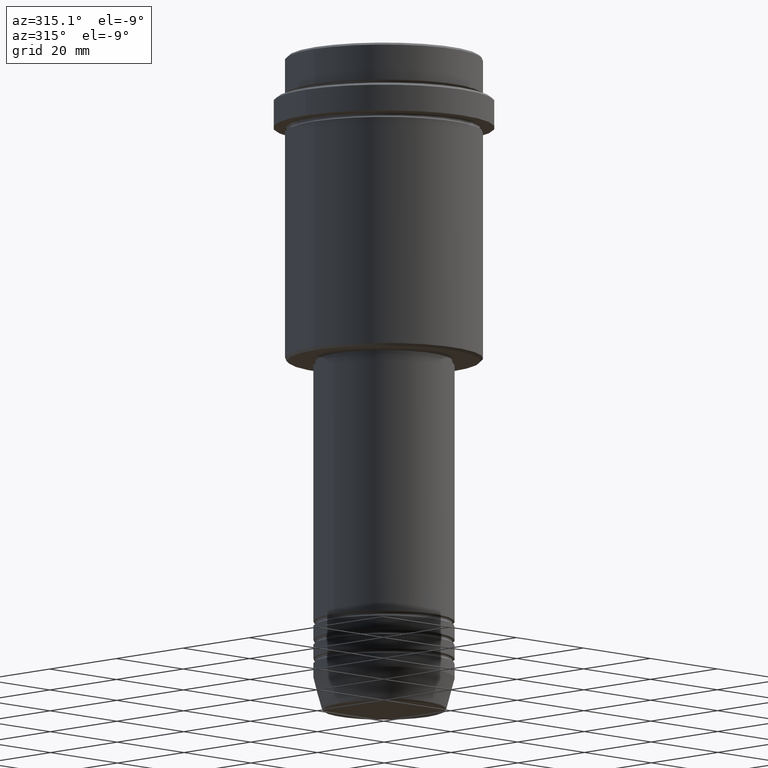
[diagram: clean part render]
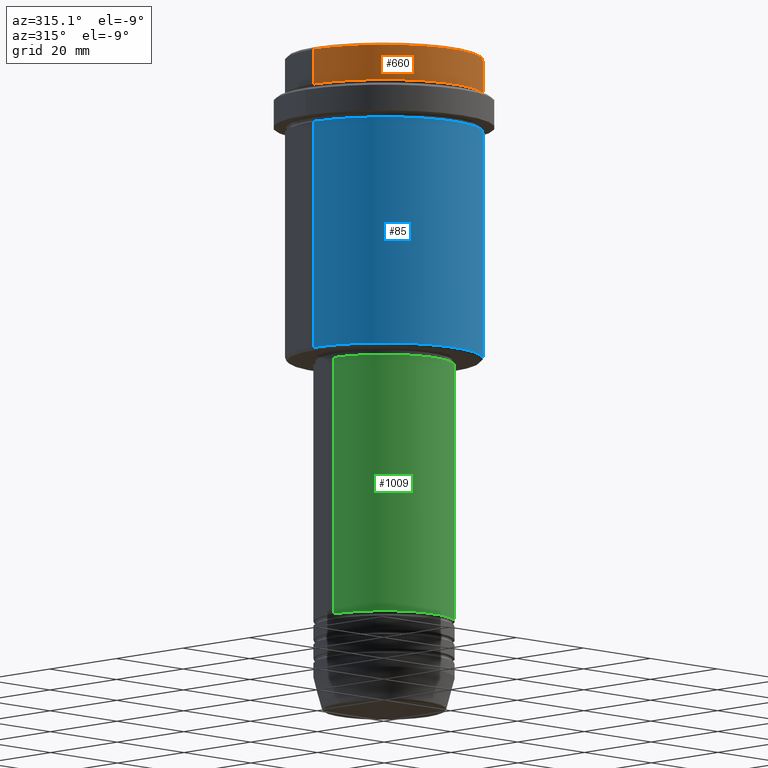
[diagram: same view with three faces highlighted in distinct colors, each labeled with its STEP entity id]
A machine part, auxiliary view with three faces highlighted in distinct colors.
Their STEP definitions:

[orange] entity #660 — the highlighted cylindrical surface (partial cylindrical patch) has radius 21 mm, axis along (-0, -0, 1).
#24 = CARTESIAN_POINT ( 'NONE',  ( 21.00000000000000000, 0.000000000000000000, 0.000000000000000000 ) ) ;
#59 = CARTESIAN_POINT ( 'NONE',  ( 0.000000000000000000, 0.000000000000000000, 0.000000000000000000 ) ) ;
#78 = ORIENTED_EDGE ( 'NONE', *, *, #736, .T. ) ;
#114 = CARTESIAN_POINT ( 'NONE',  ( 21.00000000000000000, 0.000000000000000000, -7.999999999999998224 ) ) ;
#117 = DIRECTION ( 'NONE',  ( -0.000000000000000000, -0.000000000000000000, 1.000000000000000000 ) ) ;
#182 = DIRECTION ( 'NONE',  ( 1.000000000000000000, 0.000000000000000000, 0.000000000000000000 ) ) ;
#199 = AXIS2_PLACEMENT_3D ( 'NONE', #59, #379, #1038 ) ;
#244 = VECTOR ( 'NONE', #117, 1000.000000000000000 ) ;
#252 = VERTEX_POINT ( 'NONE', #589 ) ;
#366 = CIRCLE ( 'NONE', #1177, 21.00000000000000000 ) ;
#367 = VECTOR ( 'NONE', #1124, 1000.000000000000000 ) ;
#379 = DIRECTION ( 'NONE',  ( -0.000000000000000000, -0.000000000000000000, 1.000000000000000000 ) ) ;
#394 = DIRECTION ( 'NONE',  ( 0.000000000000000000, 0.000000000000000000, -1.000000000000000000 ) ) ;
#457 = AXIS2_PLACEMENT_3D ( 'NONE', #1148, #466, #701 ) ;
#466 = DIRECTION ( 'NONE',  ( -0.000000000000000000, -0.000000000000000000, 1.000000000000000000 ) ) ;
#471 = CYLINDRICAL_SURFACE ( 'NONE', #199, 21.00000000000000000 ) ;
#479 = FACE_OUTER_BOUND ( 'NONE', #940, .T. ) ;
#496 = CARTESIAN_POINT ( 'NONE',  ( 0.000000000000000000, 0.000000000000000000, -0.5000000000000247580 ) ) ;
#531 = LINE ( 'NONE', #1098, #244 ) ;
#589 = CARTESIAN_POINT ( 'NONE',  ( 21.00000000000000000, 0.000000000000000000, -0.5000000000000247580 ) ) ;
#612 = VERTEX_POINT ( 'NONE', #114 ) ;
#660 = ADVANCED_FACE ( 'NONE', ( #479 ), #471, .T. ) ;
#701 = DIRECTION ( 'NONE',  ( 1.000000000000000000, 0.000000000000000000, 0.000000000000000000 ) ) ;
#736 = EDGE_CURVE ( 'NONE', #832, #612, #824, .T. ) ;
#742 = ORIENTED_EDGE ( 'NONE', *, *, #862, .T. ) ;
#824 = CIRCLE ( 'NONE', #457, 21.00000000000000000 ) ;
#832 = VERTEX_POINT ( 'NONE', #841 ) ;
#841 = CARTESIAN_POINT ( 'NONE',  ( -21.00000000000000000, 2.571758278209441661E-15, -7.999999999999998224 ) ) ;
#862 = EDGE_CURVE ( 'NONE', #252, #975, #366, .T. ) ;
#876 = ORIENTED_EDGE ( 'NONE', *, *, #956, .F. ) ;
#940 = EDGE_LOOP ( 'NONE', ( #876, #78, #1152, #742 ) ) ;
#956 = EDGE_CURVE ( 'NONE', #832, #975, #531, .T. ) ;
#975 = VERTEX_POINT ( 'NONE', #1317 ) ;
#1038 = DIRECTION ( 'NONE',  ( 1.000000000000000000, 0.000000000000000000, 0.000000000000000000 ) ) ;
#1096 = EDGE_CURVE ( 'NONE', #612, #252, #1226, .T. ) ;
#1098 = CARTESIAN_POINT ( 'NONE',  ( -21.00000000000000000, 2.571758278209441661E-15, 0.000000000000000000 ) ) ;
#1124 = DIRECTION ( 'NONE',  ( -0.000000000000000000, -0.000000000000000000, 1.000000000000000000 ) ) ;
#1148 = CARTESIAN_POINT ( 'NONE',  ( 0.000000000000000000, 0.000000000000000000, -7.999999999999998224 ) ) ;
#1152 = ORIENTED_EDGE ( 'NONE', *, *, #1096, .T. ) ;
#1177 = AXIS2_PLACEMENT_3D ( 'NONE', #496, #394, #182 ) ;
#1226 = LINE ( 'NONE', #24, #367 ) ;
#1317 = CARTESIAN_POINT ( 'NONE',  ( -21.00000000000000000, 2.571758278209441661E-15, -0.5000000000000247580 ) ) ;

[blue] entity #85 — the highlighted cylindrical surface (partial cylindrical patch) has radius 21 mm, axis along (-0, -0, 1).
#71 = DIRECTION ( 'NONE',  ( -0.000000000000000000, -0.000000000000000000, 1.000000000000000000 ) ) ;
#85 = ADVANCED_FACE ( 'NONE', ( #787 ), #1230, .T. ) ;
#153 = DIRECTION ( 'NONE',  ( -0.000000000000000000, -0.000000000000000000, 1.000000000000000000 ) ) ;
#154 = AXIS2_PLACEMENT_3D ( 'NONE', #1070, #382, #407 ) ;
#203 = CARTESIAN_POINT ( 'NONE',  ( -21.00000000000000000, 2.571758278209441661E-15, -16.00000000000000355 ) ) ;
#207 = VERTEX_POINT ( 'NONE', #858 ) ;
#262 = VECTOR ( 'NONE', #1163, 1000.000000000000000 ) ;
#305 = VERTEX_POINT ( 'NONE', #1049 ) ;
#348 = CIRCLE ( 'NONE', #154, 21.00000000000000000 ) ;
#368 = ORIENTED_EDGE ( 'NONE', *, *, #1276, .F. ) ;
#382 = DIRECTION ( 'NONE',  ( -0.000000000000000000, -0.000000000000000000, 1.000000000000000000 ) ) ;
#407 = DIRECTION ( 'NONE',  ( 1.000000000000000000, 0.000000000000000000, 0.000000000000000000 ) ) ;
#408 = EDGE_CURVE ( 'NONE', #305, #512, #843, .T. ) ;
#424 = EDGE_CURVE ( 'NONE', #305, #207, #524, .T. ) ;
#478 = AXIS2_PLACEMENT_3D ( 'NONE', #681, #153, #889 ) ;
#490 = VERTEX_POINT ( 'NONE', #634 ) ;
#492 = CARTESIAN_POINT ( 'NONE',  ( 21.00000000000000000, 0.000000000000000000, 0.000000000000000000 ) ) ;
#512 = VERTEX_POINT ( 'NONE', #203 ) ;
#524 = CIRCLE ( 'NONE', #1285, 21.00000000000000000 ) ;
#629 = DIRECTION ( 'NONE',  ( -0.000000000000000000, -0.000000000000000000, 1.000000000000000000 ) ) ;
#634 = CARTESIAN_POINT ( 'NONE',  ( 21.00000000000000000, 0.000000000000000000, -16.00000000000000355 ) ) ;
#671 = EDGE_LOOP ( 'NONE', ( #942, #888, #1245, #368 ) ) ;
#681 = CARTESIAN_POINT ( 'NONE',  ( 0.000000000000000000, 0.000000000000000000, 0.000000000000000000 ) ) ;
#728 = CARTESIAN_POINT ( 'NONE',  ( 0.000000000000000000, 0.000000000000000000, -64.50000000000000000 ) ) ;
#738 = DIRECTION ( 'NONE',  ( -1.000000000000000000, 0.000000000000000000, 0.000000000000000000 ) ) ;
#787 = FACE_OUTER_BOUND ( 'NONE', #671, .T. ) ;
#827 = EDGE_CURVE ( 'NONE', #207, #490, #1393, .T. ) ;
#843 = LINE ( 'NONE', #972, #1352 ) ;
#858 = CARTESIAN_POINT ( 'NONE',  ( 21.00000000000000000, 0.000000000000000000, -64.50000000000000000 ) ) ;
#888 = ORIENTED_EDGE ( 'NONE', *, *, #424, .T. ) ;
#889 = DIRECTION ( 'NONE',  ( 1.000000000000000000, 0.000000000000000000, 0.000000000000000000 ) ) ;
#942 = ORIENTED_EDGE ( 'NONE', *, *, #408, .F. ) ;
#972 = CARTESIAN_POINT ( 'NONE',  ( -21.00000000000000000, 2.571758278209441661E-15, 0.000000000000000000 ) ) ;
#1049 = CARTESIAN_POINT ( 'NONE',  ( -21.00000000000000000, 2.571758278209441661E-15, -64.50000000000000000 ) ) ;
#1070 = CARTESIAN_POINT ( 'NONE',  ( 0.000000000000000000, 0.000000000000000000, -16.00000000000000355 ) ) ;
#1163 = DIRECTION ( 'NONE',  ( -0.000000000000000000, -0.000000000000000000, 1.000000000000000000 ) ) ;
#1230 = CYLINDRICAL_SURFACE ( 'NONE', #478, 21.00000000000000000 ) ;
#1245 = ORIENTED_EDGE ( 'NONE', *, *, #827, .T. ) ;
#1276 = EDGE_CURVE ( 'NONE', #512, #490, #348, .T. ) ;
#1285 = AXIS2_PLACEMENT_3D ( 'NONE', #728, #71, #738 ) ;
#1352 = VECTOR ( 'NONE', #629, 1000.000000000000000 ) ;
#1393 = LINE ( 'NONE', #492, #262 ) ;

[green] entity #1009 — the highlighted cylindrical surface (partial cylindrical patch) has radius 15 mm, axis along (-0, -0, 1).
#3 = EDGE_CURVE ( 'NONE', #1102, #730, #936, .T. ) ;
#48 = CARTESIAN_POINT ( 'NONE',  ( -15.00000000000000000, 1.836970198721029589E-15, -66.00000000000001421 ) ) ;
#106 = CIRCLE ( 'NONE', #782, 15.00000000000000000 ) ;
#239 = CYLINDRICAL_SURFACE ( 'NONE', #710, 15.00000000000000000 ) ;
#269 = DIRECTION ( 'NONE',  ( -0.000000000000000000, -0.000000000000000000, 1.000000000000000000 ) ) ;
#289 = ORIENTED_EDGE ( 'NONE', *, *, #363, .T. ) ;
#334 = VERTEX_POINT ( 'NONE', #611 ) ;
#343 = VECTOR ( 'NONE', #1090, 1000.000000000000000 ) ;
#361 = DIRECTION ( 'NONE',  ( 1.000000000000000000, 0.000000000000000000, 0.000000000000000000 ) ) ;
#363 = EDGE_CURVE ( 'NONE', #939, #334, #912, .T. ) ;
#372 = CARTESIAN_POINT ( 'NONE',  ( -15.00000000000000000, 1.836970198721029589E-15, -120.9999999999999005 ) ) ;
#381 = DIRECTION ( 'NONE',  ( -0.000000000000000000, -0.000000000000000000, 1.000000000000000000 ) ) ;
#431 = CARTESIAN_POINT ( 'NONE',  ( 0.000000000000000000, 0.000000000000000000, 0.000000000000000000 ) ) ;
#439 = DIRECTION ( 'NONE',  ( -0.000000000000000000, -0.000000000000000000, 1.000000000000000000 ) ) ;
#578 = ORIENTED_EDGE ( 'NONE', *, *, #656, .T. ) ;
#611 = CARTESIAN_POINT ( 'NONE',  ( 15.00000000000000000, 0.000000000000000000, -66.00000000000001421 ) ) ;
#647 = DIRECTION ( 'NONE',  ( 1.000000000000000000, 0.000000000000000000, 0.000000000000000000 ) ) ;
#651 = CARTESIAN_POINT ( 'NONE',  ( 15.00000000000000000, 0.000000000000000000, -120.9999999999999005 ) ) ;
#656 = EDGE_CURVE ( 'NONE', #1102, #939, #1219, .T. ) ;
#657 = DIRECTION ( 'NONE',  ( 1.000000000000000000, 0.000000000000000000, 0.000000000000000000 ) ) ;
#710 = AXIS2_PLACEMENT_3D ( 'NONE', #431, #439, #657 ) ;
#730 = VERTEX_POINT ( 'NONE', #48 ) ;
#782 = AXIS2_PLACEMENT_3D ( 'NONE', #1413, #1083, #647 ) ;
#912 = LINE ( 'NONE', #1147, #343 ) ;
#914 = ORIENTED_EDGE ( 'NONE', *, *, #3, .F. ) ;
#936 = LINE ( 'NONE', #1368, #945 ) ;
#939 = VERTEX_POINT ( 'NONE', #651 ) ;
#945 = VECTOR ( 'NONE', #381, 1000.000000000000000 ) ;
#1009 = ADVANCED_FACE ( 'NONE', ( #1301 ), #239, .T. ) ;
#1015 = AXIS2_PLACEMENT_3D ( 'NONE', #1319, #269, #361 ) ;
#1016 = ORIENTED_EDGE ( 'NONE', *, *, #1072, .F. ) ;
#1072 = EDGE_CURVE ( 'NONE', #730, #334, #106, .T. ) ;
#1083 = DIRECTION ( 'NONE',  ( -0.000000000000000000, -0.000000000000000000, 1.000000000000000000 ) ) ;
#1090 = DIRECTION ( 'NONE',  ( -0.000000000000000000, -0.000000000000000000, 1.000000000000000000 ) ) ;
#1102 = VERTEX_POINT ( 'NONE', #372 ) ;
#1147 = CARTESIAN_POINT ( 'NONE',  ( 15.00000000000000000, 0.000000000000000000, 0.000000000000000000 ) ) ;
#1219 = CIRCLE ( 'NONE', #1015, 15.00000000000000000 ) ;
#1301 = FACE_OUTER_BOUND ( 'NONE', #1410, .T. ) ;
#1319 = CARTESIAN_POINT ( 'NONE',  ( 0.000000000000000000, 0.000000000000000000, -120.9999999999999005 ) ) ;
#1368 = CARTESIAN_POINT ( 'NONE',  ( -15.00000000000000000, 1.836970198721029589E-15, 0.000000000000000000 ) ) ;
#1410 = EDGE_LOOP ( 'NONE', ( #914, #578, #289, #1016 ) ) ;
#1413 = CARTESIAN_POINT ( 'NONE',  ( 0.000000000000000000, 0.000000000000000000, -66.00000000000001421 ) ) ;